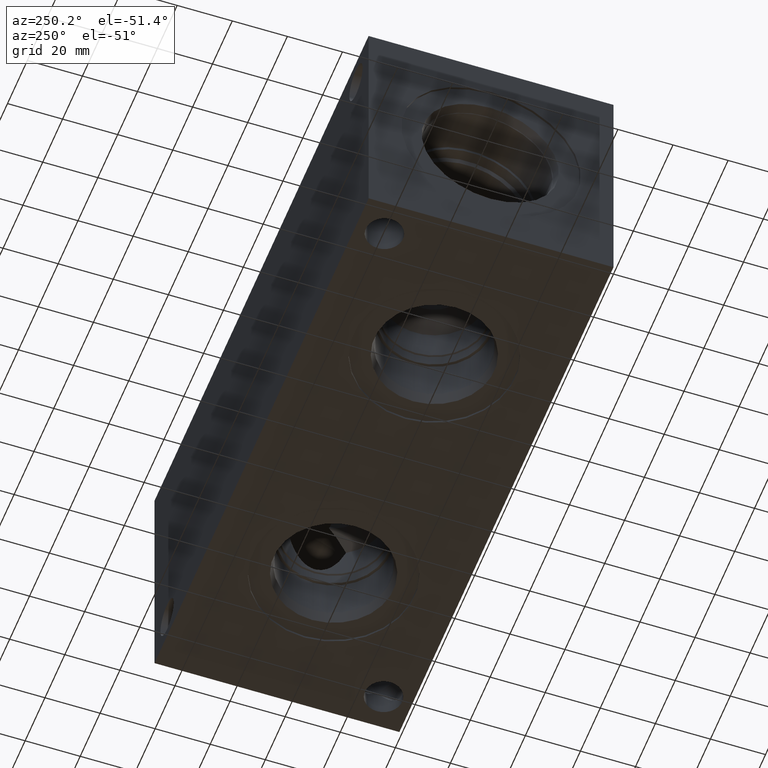
[diagram: clean part render]
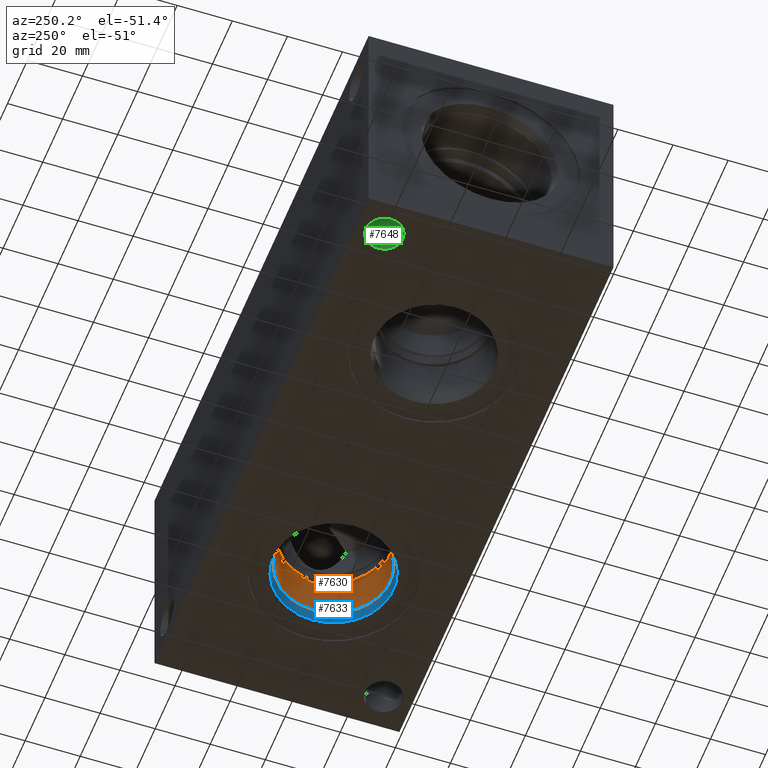
[diagram: same view with three faces highlighted in distinct colors, each labeled with its STEP entity id]
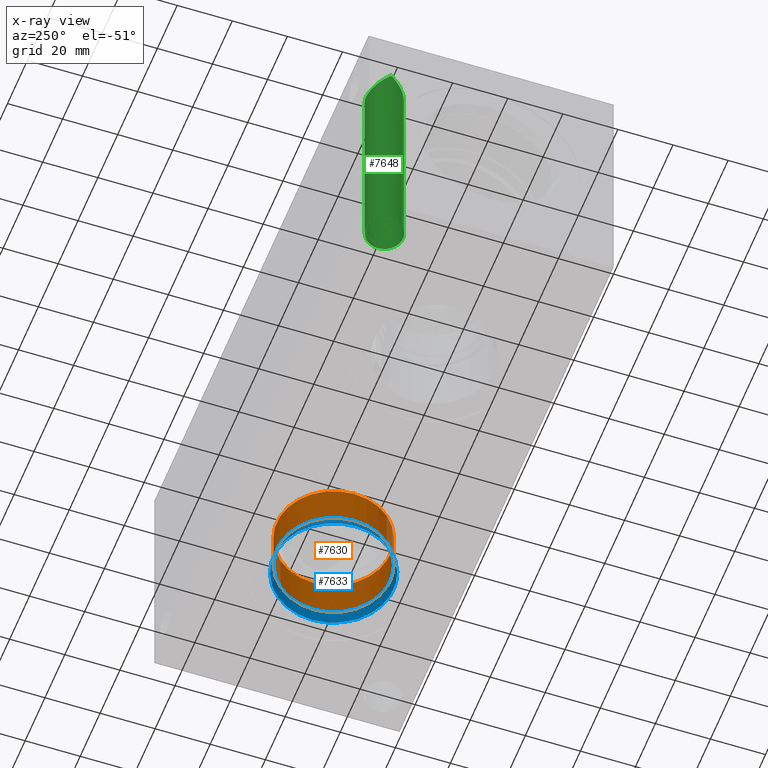
[diagram: x-ray of the same camera — body ghosted, the three highlighted faces saturated]
A machine part, auxiliary view with three faces highlighted in distinct colors.
The next image is the same camera in x-ray (body ghosted, the three faces saturated) — at least one of them is partly hidden behind the body in this view.
Their STEP definitions:

[orange] entity #7630 — the highlighted cylindrical surface (bore or boss wall) has radius 20.6375 mm, axis along (0, 0, -1).
#50=CYLINDRICAL_SURFACE('',#7962,20.6375);
#111=CIRCLE('',#7959,20.6375);
#112=CIRCLE('',#7960,20.6375);
#114=CIRCLE('',#7963,20.6375);
#911=FACE_OUTER_BOUND('',#1335,.T.);
#1335=EDGE_LOOP('',(#6422,#6423,#6424,#6425,#6426));
#2080=LINE('',#13089,#2794);
#2794=VECTOR('',#9293,20.6375);
#3467=VERTEX_POINT('',#13080);
#3468=VERTEX_POINT('',#13081);
#3470=VERTEX_POINT('',#13087);
#4477=EDGE_CURVE('',#3467,#3468,#111,.T.);
#4478=EDGE_CURVE('',#3468,#3467,#112,.T.);
#4480=EDGE_CURVE('',#3470,#3470,#114,.T.);
#4481=EDGE_CURVE('',#3470,#3468,#2080,.T.);
#6422=ORIENTED_EDGE('',*,*,#4480,.F.);
#6423=ORIENTED_EDGE('',*,*,#4481,.T.);
#6424=ORIENTED_EDGE('',*,*,#4477,.F.);
#6425=ORIENTED_EDGE('',*,*,#4478,.F.);
#6426=ORIENTED_EDGE('',*,*,#4481,.F.);
#7630=ADVANCED_FACE('',(#911),#50,.F.);
#7959=AXIS2_PLACEMENT_3D('',#13082,#9283,#9284);
#7960=AXIS2_PLACEMENT_3D('',#13083,#9285,#9286);
#7962=AXIS2_PLACEMENT_3D('',#13086,#9289,#9290);
#7963=AXIS2_PLACEMENT_3D('',#13088,#9291,#9292);
#9283=DIRECTION('center_axis',(0.,0.,-1.));
#9284=DIRECTION('ref_axis',(1.,0.,0.));
#9285=DIRECTION('center_axis',(0.,0.,-1.));
#9286=DIRECTION('ref_axis',(1.,0.,0.));
#9289=DIRECTION('center_axis',(0.,0.,-1.));
#9290=DIRECTION('ref_axis',(1.,0.,0.));
#9291=DIRECTION('center_axis',(0.,0.,1.));
#9292=DIRECTION('ref_axis',(1.,0.,0.));
#9293=DIRECTION('',(0.,0.,1.));
#13080=CARTESIAN_POINT('',(179.3875,44.45,19.8374));
#13081=CARTESIAN_POINT('',(138.1125,44.45,19.8374));
#13082=CARTESIAN_POINT('Origin',(158.75,44.45,19.8374));
#13083=CARTESIAN_POINT('Origin',(158.75,44.45,19.8374));
#13086=CARTESIAN_POINT('Origin',(158.75,44.45,9.9187));
#13087=CARTESIAN_POINT('',(138.1125,44.45,4.97099998253897));
#13088=CARTESIAN_POINT('Origin',(158.75,44.45,4.97099998253897));
#13089=CARTESIAN_POINT('',(138.1125,44.45,9.9187));

[blue] entity #7633 — the highlighted conical surface has half-angle 15 deg.
#29=CONICAL_SURFACE('',#7968,10.87755,0.261799387799149);
#114=CIRCLE('',#7963,20.6375);
#117=CIRCLE('',#7969,21.7551);
#118=CIRCLE('',#7970,21.7551);
#914=FACE_OUTER_BOUND('',#1338,.T.);
#1338=EDGE_LOOP('',(#6437,#6438,#6439,#6440,#6441));
#2083=LINE('',#13102,#2797);
#2797=VECTOR('',#9308,10.87755);
#3470=VERTEX_POINT('',#13087);
#3473=VERTEX_POINT('',#13099);
#3474=VERTEX_POINT('',#13100);
#4480=EDGE_CURVE('',#3470,#3470,#114,.T.);
#4486=EDGE_CURVE('',#3473,#3474,#117,.T.);
#4487=EDGE_CURVE('',#3474,#3470,#2083,.T.);
#4488=EDGE_CURVE('',#3474,#3473,#118,.T.);
#6437=ORIENTED_EDGE('',*,*,#4486,.T.);
#6438=ORIENTED_EDGE('',*,*,#4487,.T.);
#6439=ORIENTED_EDGE('',*,*,#4480,.T.);
#6440=ORIENTED_EDGE('',*,*,#4487,.F.);
#6441=ORIENTED_EDGE('',*,*,#4488,.T.);
#7633=ADVANCED_FACE('',(#914),#29,.F.);
#7963=AXIS2_PLACEMENT_3D('',#13088,#9291,#9292);
#7968=AXIS2_PLACEMENT_3D('',#13098,#9304,#9305);
#7969=AXIS2_PLACEMENT_3D('',#13101,#9306,#9307);
#7970=AXIS2_PLACEMENT_3D('',#13103,#9309,#9310);
#9291=DIRECTION('center_axis',(0.,0.,1.));
#9292=DIRECTION('ref_axis',(1.,0.,0.));
#9304=DIRECTION('center_axis',(0.,0.,-1.));
#9305=DIRECTION('ref_axis',(1.,0.,0.));
#9306=DIRECTION('center_axis',(0.,0.,-1.));
#9307=DIRECTION('ref_axis',(1.,0.,0.));
#9308=DIRECTION('',(0.258819045102521,-3.16961915143176E-17,0.965925826289068));
#9309=DIRECTION('center_axis',(0.,0.,-1.));
#9310=DIRECTION('ref_axis',(1.,0.,0.));
#13087=CARTESIAN_POINT('',(138.1125,44.45,4.97099998253897));
#13088=CARTESIAN_POINT('Origin',(158.75,44.45,4.97099998253897));
#13098=CARTESIAN_POINT('Origin',(158.75,44.45,41.3956292618708));
#13099=CARTESIAN_POINT('',(180.5051,44.45,0.80006));
#13100=CARTESIAN_POINT('',(136.9949,44.45,0.800060000000009));
#13101=CARTESIAN_POINT('Origin',(158.75,44.45,0.80006));
#13102=CARTESIAN_POINT('',(147.87245,44.45,41.3956292618708));
#13103=CARTESIAN_POINT('Origin',(158.75,44.45,0.80006));

[green] entity #7648 — the highlighted cylindrical surface (bore or boss wall) has radius 6.7437 mm, axis along (0, 0, 1).
#15=ELLIPSE('',#7995,9.53703200057546,6.7437);
#16=ELLIPSE('',#7997,9.53703200057546,6.7437);
#62=CYLINDRICAL_SURFACE('',#8011,6.7437);
#137=CIRCLE('',#8012,6.7437);
#929=FACE_OUTER_BOUND('',#1355,.T.);
#1355=EDGE_LOOP('',(#6516,#6517,#6518,#6519,#6520));
#2095=LINE('',#13178,#2809);
#2809=VECTOR('',#9404,6.7437);
#3488=VERTEX_POINT('',#13145);
#3489=VERTEX_POINT('',#13147);
#3496=VERTEX_POINT('',#13177);
#4510=EDGE_CURVE('',#3488,#3489,#15,.T.);
#4511=EDGE_CURVE('',#3489,#3488,#16,.T.);
#4526=EDGE_CURVE('',#3488,#3496,#2095,.T.);
#4527=EDGE_CURVE('',#3496,#3496,#137,.T.);
#6516=ORIENTED_EDGE('',*,*,#4511,.T.);
#6517=ORIENTED_EDGE('',*,*,#4526,.T.);
#6518=ORIENTED_EDGE('',*,*,#4527,.F.);
#6519=ORIENTED_EDGE('',*,*,#4526,.F.);
#6520=ORIENTED_EDGE('',*,*,#4510,.T.);
#7648=ADVANCED_FACE('',(#929),#62,.F.);
#7995=AXIS2_PLACEMENT_3D('',#13149,#9365,#9366);
#7997=AXIS2_PLACEMENT_3D('',#13151,#9369,#9370);
#8011=AXIS2_PLACEMENT_3D('',#13176,#9402,#9403);
#8012=AXIS2_PLACEMENT_3D('',#13179,#9405,#9406);
#9365=DIRECTION('center_axis',(0.,-0.707106781186546,0.707106781186549));
#9366=DIRECTION('ref_axis',(0.,0.707106781186549,0.707106781186546));
#9369=DIRECTION('center_axis',(0.,0.707106781186546,0.707106781186549));
#9370=DIRECTION('ref_axis',(0.,-0.707106781186549,0.707106781186546));
#9402=DIRECTION('center_axis',(0.,0.,1.));
#9403=DIRECTION('ref_axis',(1.,0.,0.));
#9404=DIRECTION('',(0.,0.,-1.));
#9405=DIRECTION('center_axis',(0.,0.,1.));
#9406=DIRECTION('ref_axis',(1.,0.,0.));
#13145=CARTESIAN_POINT('',(5.9563,78.5876,78.5876));
#13147=CARTESIAN_POINT('',(19.4437,78.5876,78.5876));
#13149=CARTESIAN_POINT('Origin',(12.7,78.5876,78.5876));
#13151=CARTESIAN_POINT('Origin',(12.7,78.5876,78.5876));
#13176=CARTESIAN_POINT('Origin',(12.7,78.5876,-160.938407775906));
#13177=CARTESIAN_POINT('',(5.9563,78.5876,0.));
#13178=CARTESIAN_POINT('',(5.9563,78.5876,-160.938407775906));
#13179=CARTESIAN_POINT('Origin',(12.7,78.5876,0.));